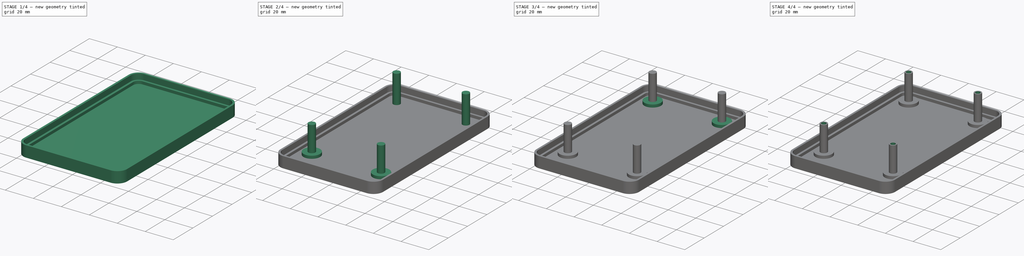
[diagram: build sequence overview — one tinted view per stage of 4, left to right]
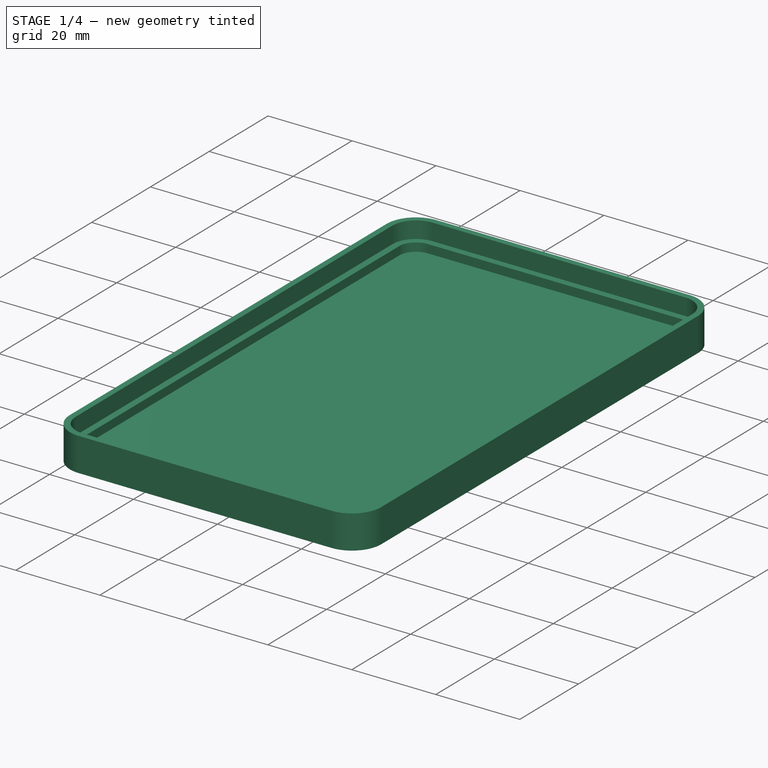
[diagram: stage 1 of 4 — iso view after this stage's code; geometry added in this stage tinted green]
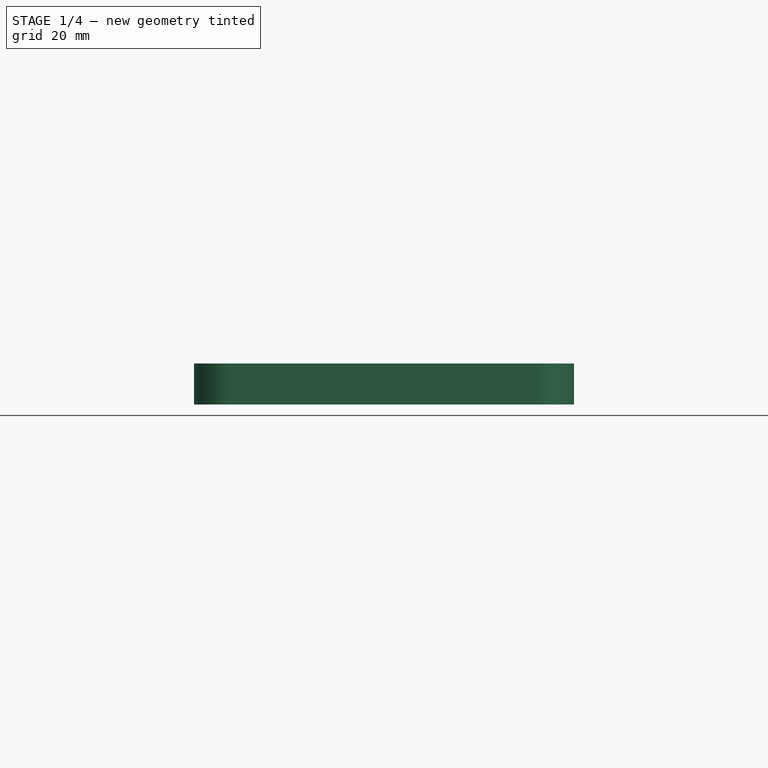
[diagram: stage 1 of 4 — front view after this stage's code; geometry added in this stage tinted green]
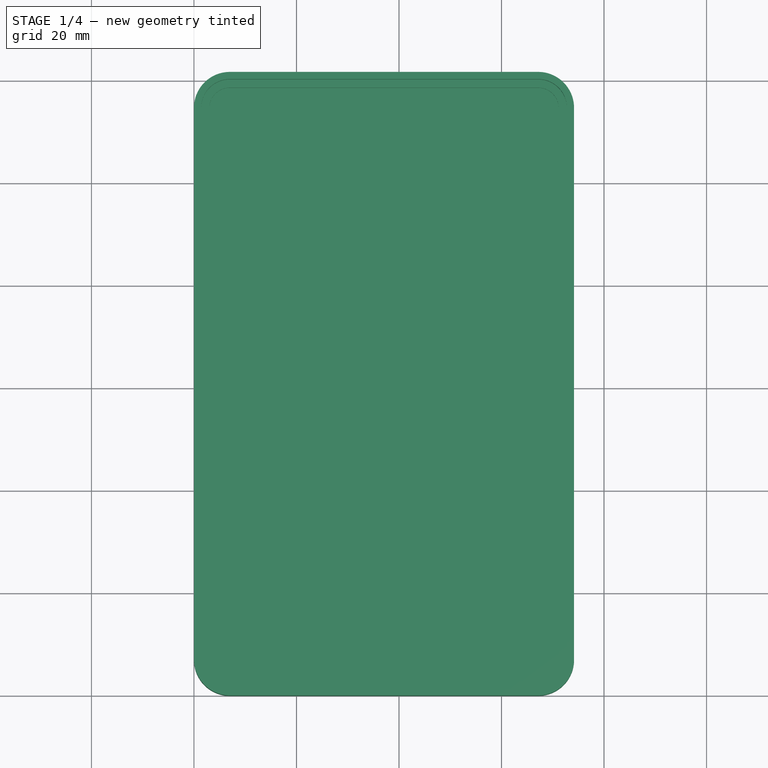
[diagram: stage 1 of 4 — top view after this stage's code; geometry added in this stage tinted green]
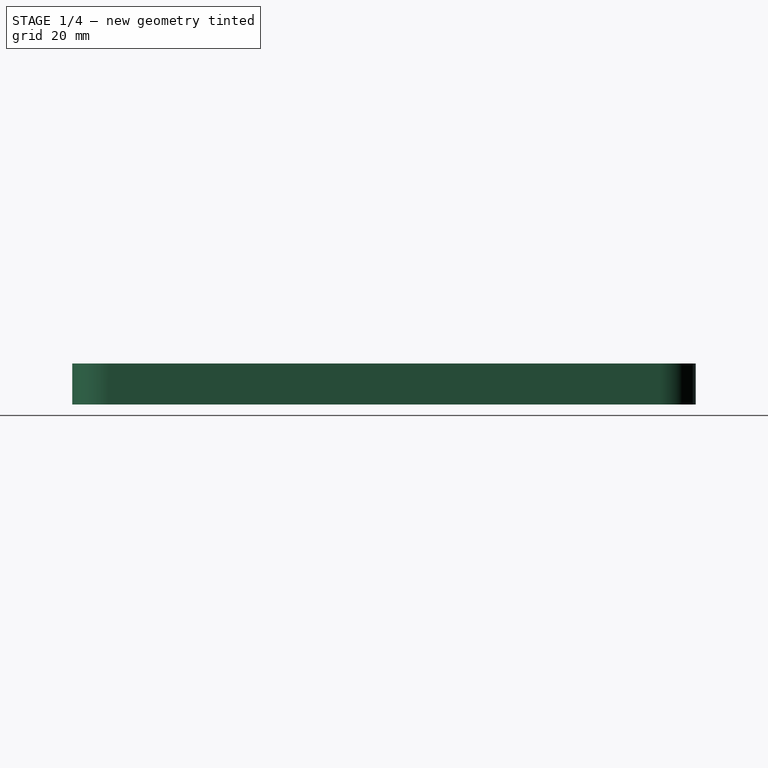
[diagram: stage 1 of 4 — right view after this stage's code; geometry added in this stage tinted green]
FCSTD DOCUMENT  (FreeCAD 0.20R29603 (Git))
Label: PPMInspectUnterschale
License: All rights reserved
LicenseURL: http://en.wikipedia.org/wiki/All_rights_reserved
objects: Part::Feature×13, Sketcher::SketchObject×5, PartDesign::Pad×4, PartDesign::AdditiveCylinder×4, PartDesign::SubtractiveCylinder×4, PartDesign::Pocket×1, PartDesign::Body×1
note: 45 computed .brp shape members not serialized (recipe doc carries the construction recipe); baked Part::Feature solids carry a one-line shape summary decoded from their .brp

FEATURE [Part::Feature] Shape004 .. Shape007  x4 (patterned run collapsed; names and placements below)
  shape: bbox 3.3 x 3.3 x 2e-07 mm, 0 faces, 0 solids (baked)
FEATURE [Part::Feature] Shape008 .. Shape011  x4 (patterned run collapsed; names and placements below)
  shape: bbox 5 x 5 x 2e-07 mm, 0 faces, 0 solids (baked)
FEATURE [Part::Feature] Shape030
  shape: bbox 3 x 2e-07 x 2e-07 mm, 0 faces, 0 solids (baked)
FEATURE [Part::Feature] Shape031
  shape: bbox 3 x 2e-07 x 2e-07 mm, 0 faces, 0 solids (baked)
FEATURE [Part::Feature] Wire001
  shape: bbox 68.15 x 115.7 x 2e-07 mm, 0 faces, 0 solids (baked)
FEATURE [Sketcher::SketchObject] Sketch001  label="Sketch001 Seitenteile dick"
  FullyConstrained = false
  sketch-geometry (16):
    g0: LineSegment StartX=7 StartY=3 StartZ=0 EndX=67.15 EndY=3 EndZ=0
    g1: ArcOfCircle CenterX=67.15 CenterY=7 CenterZ=0 NormalX=0 NormalY=0 NormalZ=1 AngleXU=0 Radius=4 StartAngle=4.71239 EndAngle=6.28319
    g2: LineSegment StartX=71.15 StartY=7 StartZ=0 EndX=71.15 EndY=114.65 EndZ=0
    g3: ArcOfCircle CenterX=67.15 CenterY=114.65 CenterZ=0 NormalX=0 NormalY=0 NormalZ=1 AngleXU=0 Radius=4 StartAngle=0 EndAngle=1.5708
    g4: LineSegment StartX=67.15 StartY=118.65 StartZ=0 EndX=7 EndY=118.65 EndZ=0
    g5: ArcOfCircle CenterX=7 CenterY=114.65 CenterZ=0 NormalX=0 NormalY=0 NormalZ=1 AngleXU=0 Radius=4 StartAngle=1.5708 EndAngle=3.14159
    g6: LineSegment StartX=3 StartY=114.65 StartZ=0 EndX=3 EndY=7 EndZ=0
    g7: ArcOfCircle CenterX=7 CenterY=7 CenterZ=0 NormalX=0 NormalY=0 NormalZ=1 AngleXU=0 Radius=4 StartAngle=3.14159 EndAngle=4.71239
    g8: LineSegment StartX=74.15 StartY=7 StartZ=0 EndX=74.15 EndY=114.65 EndZ=0
    g9: ArcOfCircle CenterX=67.15 CenterY=114.65 CenterZ=0 NormalX=0 NormalY=0 NormalZ=1 AngleXU=0 Radius=7 StartAngle=0 EndAngle=1.5708
    g10: LineSegment StartX=67.15 StartY=121.65 StartZ=0 EndX=7 EndY=121.65 EndZ=0
    g11: ArcOfCircle CenterX=7 CenterY=114.65 CenterZ=0 NormalX=0 NormalY=0 NormalZ=1 AngleXU=0 Radius=7 StartAngle=1.5708 EndAngle=3.14159
    g12: LineSegment StartX=0 StartY=114.65 StartZ=0 EndX=-1.33e-14 EndY=7 EndZ=0
    g13: ArcOfCircle CenterX=7 CenterY=7 CenterZ=0 NormalX=0 NormalY=0 NormalZ=1 AngleXU=0 Radius=7 StartAngle=3.14159 EndAngle=4.71239
    g14: LineSegment StartX=7 StartY=9e-16 StartZ=0 EndX=67.15 EndY=9e-16 EndZ=0
    g15: ArcOfCircle CenterX=67.15 CenterY=7 CenterZ=0 NormalX=0 NormalY=0 NormalZ=1 AngleXU=0 Radius=7 StartAngle=4.71239 EndAngle=6.28319
  constraints (18):
    c: Coincident(g0,g1)
    c: Coincident(g1,g2)
    c: Coincident(g2,g3)
    c: Coincident(g3,g4)
    c: Horizontal(g4)
    c: Coincident(g4,g5)
    c: Coincident(g5,g6)
    c: Coincident(g6,g7)
    c: Coincident(g7,g0)
    c: Coincident(g8,g9)
    c: Coincident(g9,g10)
    c: Horizontal(g10)
    c: Coincident(g10,g11)
    c: Coincident(g11,g12)
    c: Coincident(g12,g13)
    c: Coincident(g13,g14)
    c: Coincident(g14,g15)
    c: Coincident(g15,g8)
FEATURE [Part::Feature] Wire
  shape: bbox 74.15 x 121.7 x 2e-07 mm, 0 faces, 0 solids (baked)
FEATURE [Part::Feature] Wire003
  shape: bbox 71.35 x 118.9 x 2e-07 mm, 0 faces, 0 solids (baked)
FEATURE [Sketcher::SketchObject] Sketch  label="Sketch Seitenteile dünn"
  FullyConstrained = false
  sketch-geometry (16):
    g0: LineSegment StartX=74.15 StartY=7 StartZ=0 EndX=74.15 EndY=114.65 EndZ=0
    g1: ArcOfCircle CenterX=67.15 CenterY=114.65 CenterZ=0 NormalX=0 NormalY=0 NormalZ=1 AngleXU=0 Radius=7 StartAngle=0 EndAngle=1.5708
    g2: LineSegment StartX=67.15 StartY=121.65 StartZ=0 EndX=7 EndY=121.65 EndZ=0
    g3: ArcOfCircle CenterX=7 CenterY=114.65 CenterZ=0 NormalX=0 NormalY=0 NormalZ=1 AngleXU=0 Radius=7 StartAngle=1.5708 EndAngle=3.14159
    g4: LineSegment StartX=0 StartY=114.65 StartZ=0 EndX=-1.33e-14 EndY=7 EndZ=0
    g5: ArcOfCircle CenterX=7 CenterY=7 CenterZ=0 NormalX=0 NormalY=0 NormalZ=1 AngleXU=0 Radius=7 StartAngle=3.14159 EndAngle=4.71239
    g6: LineSegment StartX=7 StartY=9e-16 StartZ=0 EndX=67.15 EndY=9e-16 EndZ=0
    g7: ArcOfCircle CenterX=67.15 CenterY=7 CenterZ=0 NormalX=0 NormalY=0 NormalZ=1 AngleXU=0 Radius=7 StartAngle=4.71239 EndAngle=6.28319
    g8: LineSegment StartX=7 StartY=1.4 StartZ=0 EndX=67.15 EndY=1.4 EndZ=0
    g9: ArcOfCircle CenterX=67.15 CenterY=7 CenterZ=0 NormalX=0 NormalY=0 NormalZ=1 AngleXU=0 Radius=5.6 StartAngle=4.71239 EndAngle=6.28319
    g10: LineSegment StartX=72.75 StartY=7 StartZ=0 EndX=72.75 EndY=114.65 EndZ=0
    g11: ArcOfCircle CenterX=67.15 CenterY=114.65 CenterZ=0 NormalX=0 NormalY=0 NormalZ=1 AngleXU=0 Radius=5.6 StartAngle=0 EndAngle=1.5708
    g12: LineSegment StartX=67.15 StartY=120.25 StartZ=0 EndX=7 EndY=120.25 EndZ=0
    g13: ArcOfCircle CenterX=7 CenterY=114.65 CenterZ=0 NormalX=0 NormalY=0 NormalZ=1 AngleXU=0 Radius=5.6 StartAngle=1.5708 EndAngle=3.14159
    g14: LineSegment StartX=1.4 StartY=114.65 StartZ=0 EndX=1.4 EndY=7 EndZ=0
    g15: ArcOfCircle CenterX=7 CenterY=7 CenterZ=0 NormalX=0 NormalY=0 NormalZ=1 AngleXU=0 Radius=5.6 StartAngle=3.14159 EndAngle=4.71239
  constraints (18):
    c: Coincident(g0,g1)
    c: Coincident(g1,g2)
    c: Horizontal(g2)
    c: Coincident(g2,g3)
    c: Coincident(g3,g4)
    c: Coincident(g4,g5)
    c: Coincident(g5,g6)
    c: Horizontal(g6)
    c: Coincident(g6,g7)
    c: Coincident(g7,g0)
    c: Coincident(g8,g9)
    c: Coincident(g9,g10)
    c: Coincident(g10,g11)
    c: Coincident(g11,g12)
    c: Coincident(g12,g13)
    c: Coincident(g13,g14)
    c: Coincident(g14,g15)
    c: Coincident(g15,g8)
FEATURE [Sketcher::SketchObject] Sketch002  label="Sketch002 Pfosten dick"
  FullyConstrained = false
  sketch-geometry (4):
    g0: Circle CenterX=12.0751 CenterY=22.0751 CenterZ=0 NormalX=0 NormalY=0 NormalZ=-1 AngleXU=0 Radius=2.5
    g1: Circle CenterX=12.075 CenterY=109.575 CenterZ=0 NormalX=0 NormalY=0 NormalZ=-1 AngleXU=0 Radius=2.5
    g2: Circle CenterX=62.075 CenterY=109.575 CenterZ=0 NormalX=0 NormalY=0 NormalZ=-1 AngleXU=0 Radius=2.5
    g3: Circle CenterX=62.075 CenterY=22.0751 CenterZ=0 NormalX=0 NormalY=0 NormalZ=-1 AngleXU=0 Radius=2.5
FEATURE [Sketcher::SketchObject] Sketch003  label="Sketch003 Pfosten dünn"
  FullyConstrained = false
  sketch-geometry (4):
    g0: Circle CenterX=12.0751 CenterY=22.0751 CenterZ=0 NormalX=0 NormalY=0 NormalZ=-1 AngleXU=0 Radius=1.65
    g1: Circle CenterX=12.075 CenterY=109.575 CenterZ=0 NormalX=0 NormalY=0 NormalZ=-1 AngleXU=0 Radius=1.65
    g2: Circle CenterX=62.075 CenterY=109.575 CenterZ=0 NormalX=0 NormalY=0 NormalZ=-1 AngleXU=0 Radius=1.65
    g3: Circle CenterX=62.075 CenterY=22.0751 CenterZ=0 NormalX=0 NormalY=0 NormalZ=-1 AngleXU=0 Radius=1.65
FEATURE [Sketcher::SketchObject] Sketch004  label="Sketch004 Grundplatte"
  FullyConstrained = false
  MapMode = 5
  Support = -> [XY_Plane]
  sketch-geometry (8):
    g0: LineSegment StartX=74.15 StartY=7 StartZ=0 EndX=74.15 EndY=114.65 EndZ=0
    g1: ArcOfCircle CenterX=67.15 CenterY=114.65 CenterZ=0 NormalX=0 NormalY=0 NormalZ=1 AngleXU=0 Radius=7 StartAngle=0 EndAngle=1.5708
    g2: LineSegment StartX=67.15 StartY=121.65 StartZ=0 EndX=7 EndY=121.65 EndZ=0
    g3: ArcOfCircle CenterX=7 CenterY=114.65 CenterZ=0 NormalX=0 NormalY=0 NormalZ=1 AngleXU=0 Radius=7 StartAngle=1.5708 EndAngle=3.14159
    g4: LineSegment StartX=0 StartY=114.65 StartZ=0 EndX=-1.33e-14 EndY=7 EndZ=0
    g5: ArcOfCircle CenterX=7 CenterY=7 CenterZ=0 NormalX=0 NormalY=0 NormalZ=1 AngleXU=0 Radius=7 StartAngle=3.14159 EndAngle=4.71239
    g6: LineSegment StartX=7 StartY=9e-16 StartZ=0 EndX=67.15 EndY=9e-16 EndZ=0
    g7: ArcOfCircle CenterX=67.15 CenterY=7 CenterZ=0 NormalX=0 NormalY=0 NormalZ=1 AngleXU=0 Radius=7 StartAngle=4.71239 EndAngle=6.28319
  constraints (10):
    c: Coincident(g0,g1)
    c: Coincident(g1,g2)
    c: Horizontal(g2)
    c: Coincident(g2,g3)
    c: Coincident(g3,g4)
    c: Coincident(g4,g5)
    c: Coincident(g5,g6)
    c: Horizontal(g6)
    c: Coincident(g6,g7)
    c: Coincident(g7,g0)
FEATURE [PartDesign::Pad] Pad  label="Pad Grundplatte"
  Direction = (0,0,1)
  Length = 2
  Length2 = 10
  Profile = -> Sketch004
  ReferenceAxis = -> Sketch004 [N_Axis]
  Type = 0
FEATURE [PartDesign::Pad] Pad001  label="Pad001 Seitenteile dick"
  BaseFeature = -> Pad
  Direction = (0,0,1)
  Length = 4
  Length2 = 10
  Profile = -> Sketch001
  ReferenceAxis = -> Sketch001 [N_Axis]
  Type = 0
FEATURE [PartDesign::Pad] Pad002  label="Pad002 Seitenteile dünn"
  BaseFeature = -> Pad001
  Direction = (0,0,1)
  Length = 8
  Length2 = 10
  Profile = -> Sketch
  ReferenceAxis = -> Sketch [N_Axis]
  Type = 0
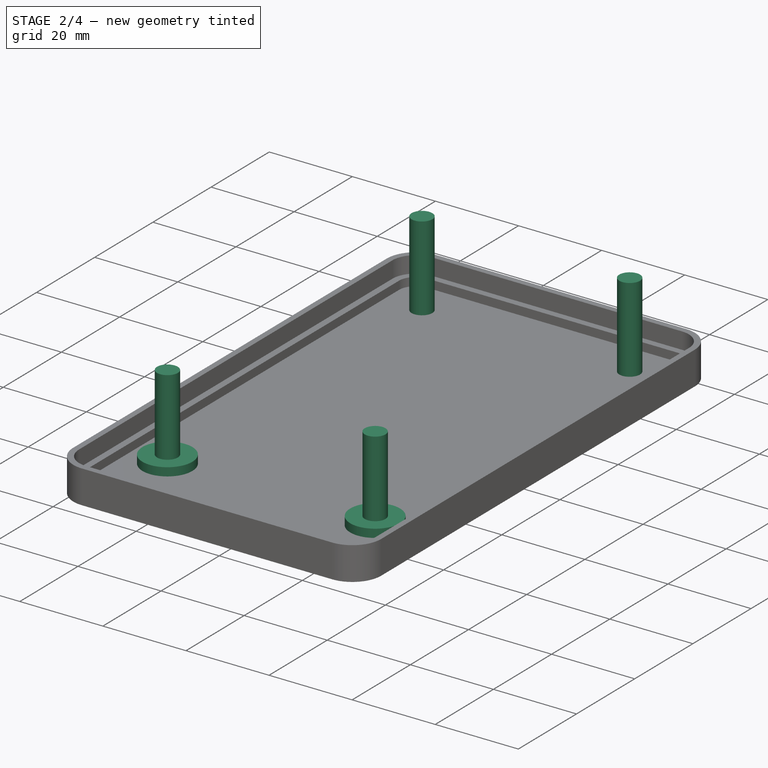
[diagram: stage 2 of 4 — iso view after this stage's code; geometry added in this stage tinted green]
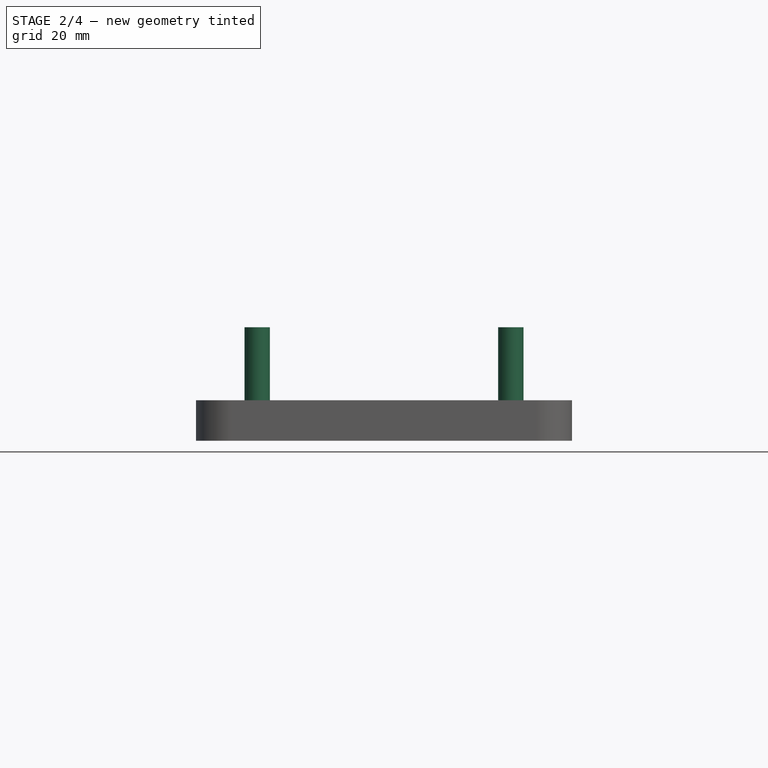
[diagram: stage 2 of 4 — front view after this stage's code; geometry added in this stage tinted green]
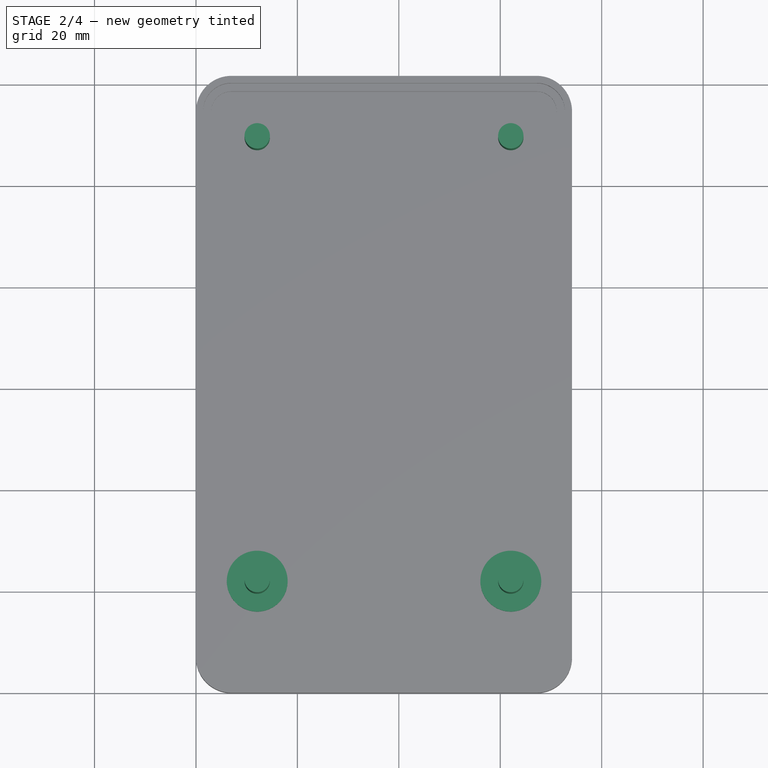
[diagram: stage 2 of 4 — top view after this stage's code; geometry added in this stage tinted green]
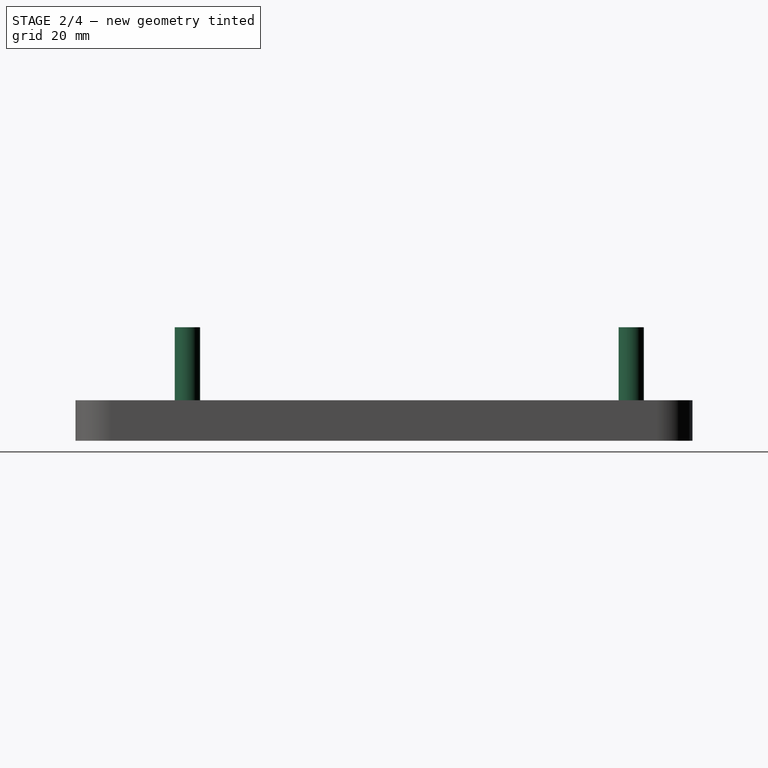
[diagram: stage 2 of 4 — right view after this stage's code; geometry added in this stage tinted green]
FEATURE [PartDesign::Pad] Pad003  label="Pad003 Pfosten dick"
  BaseFeature = -> Pad002
  Direction = (0,0,1)
  Length = 22.4
  Length2 = 10
  Profile = -> Sketch002
  ReferenceAxis = -> Sketch002 [N_Axis]
  Type = 0
FEATURE [PartDesign::AdditiveCylinder] Cylinder
  Angle = 360
  AttacherType = Attacher::AttachEngine3D
  BaseFeature = -> Pad003
  FirstAngle = 0
  Height = 4
  MapMode = 11
  Placement = pos=(12.0751,22.0751,0) rot=(0,0,-1;1.5708rad)
  Radius = 6
  SecondAngle = 0
  Support = -> [Shape011]
FEATURE [PartDesign::AdditiveCylinder] Cylinder001
  Angle = 360
  AttacherType = Attacher::AttachEngine3D
  BaseFeature = -> Cylinder
  FirstAngle = 0
  Height = 4
  MapMode = 11
  Placement = pos=(62.075,22.0751,0) rot=(0,0,-1;1.5708rad)
  Radius = 6
  SecondAngle = 0
  Support = -> [Shape010]
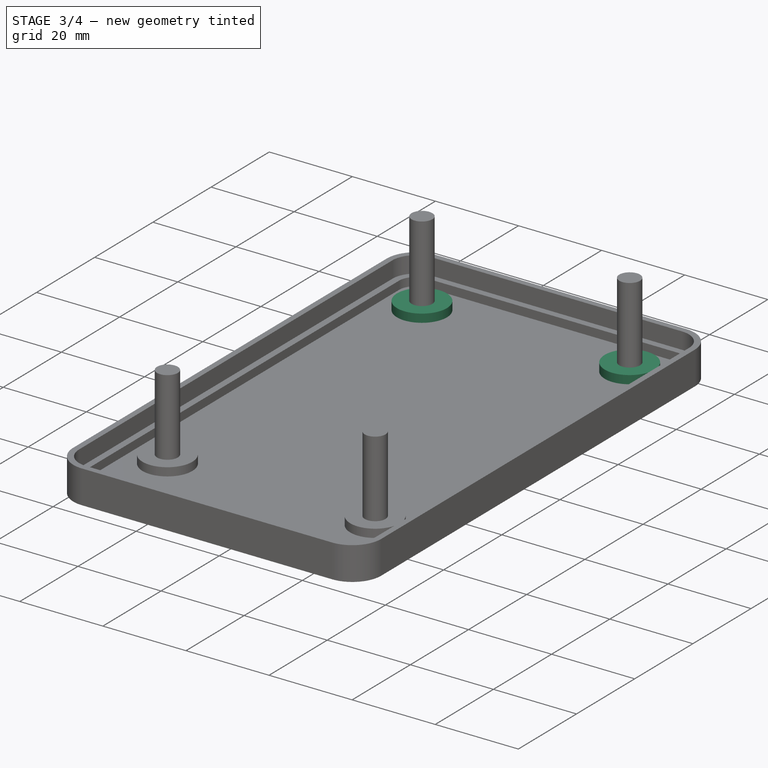
[diagram: stage 3 of 4 — iso view after this stage's code; geometry added in this stage tinted green]
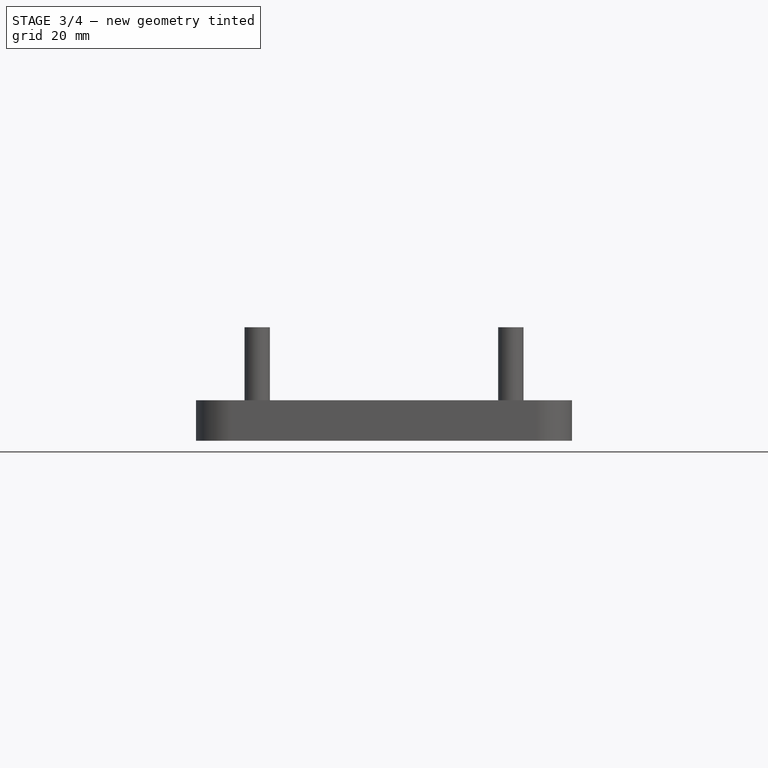
[diagram: stage 3 of 4 — front view after this stage's code; geometry added in this stage tinted green]
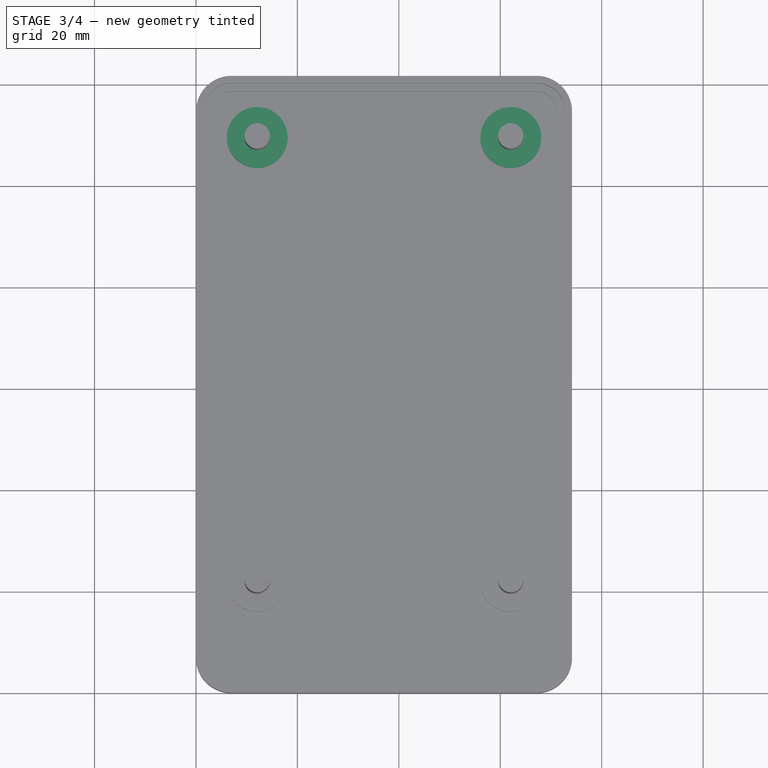
[diagram: stage 3 of 4 — top view after this stage's code; geometry added in this stage tinted green]
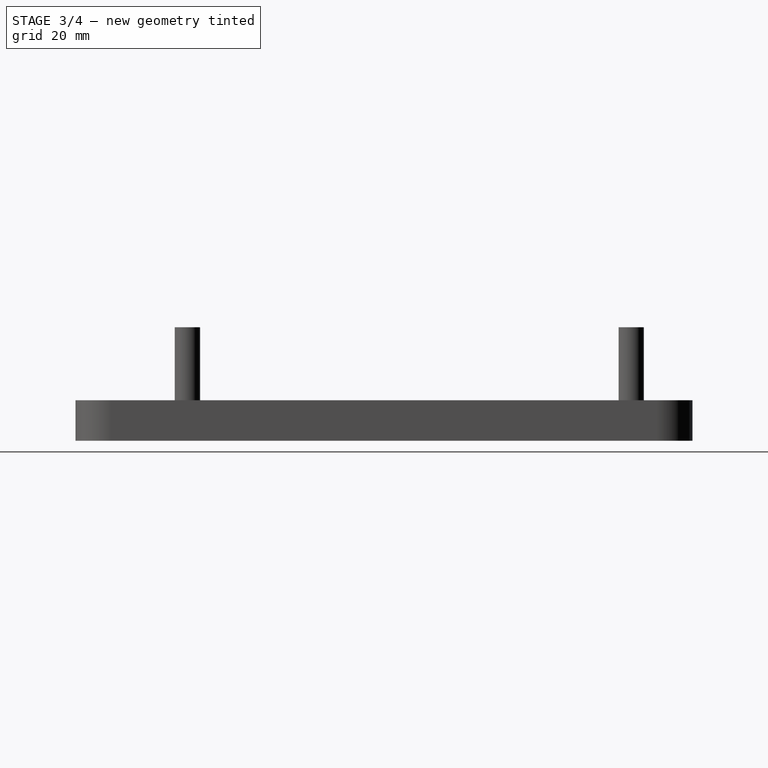
[diagram: stage 3 of 4 — right view after this stage's code; geometry added in this stage tinted green]
FEATURE [PartDesign::AdditiveCylinder] Cylinder002
  Angle = 360
  AttacherType = Attacher::AttachEngine3D
  BaseFeature = -> Cylinder001
  FirstAngle = 0
  Height = 4
  MapMode = 11
  Placement = pos=(62.075,109.575,0) rot=(0,0,-1;1.5708rad)
  Radius = 6
  SecondAngle = 0
  Support = -> [Shape008]
FEATURE [PartDesign::AdditiveCylinder] Cylinder003
  Angle = 360
  AttacherType = Attacher::AttachEngine3D
  BaseFeature = -> Cylinder002
  FirstAngle = 0
  Height = 4
  MapMode = 11
  Placement = pos=(12.075,109.575,0) rot=(0,0,-1;1.5708rad)
  Radius = 6
  SecondAngle = 0
  Support = -> [Cylinder002]
FEATURE [PartDesign::SubtractiveCylinder] Cylinder004
  Angle = 360
  AttacherType = Attacher::AttachEngine3D
  BaseFeature = -> Cylinder003
  FirstAngle = 0
  Height = 2
  MapMode = 11
  Placement = pos=(12.0751,22.0751,0) rot=(0,0,-1;1.5708rad)
  Radius = 3
  SecondAngle = 0
  Support = -> [Shape011]
FEATURE [PartDesign::SubtractiveCylinder] Cylinder005
  Angle = 360
  AttacherType = Attacher::AttachEngine3D
  BaseFeature = -> Cylinder004
  FirstAngle = 0
  Height = 2
  MapMode = 11
  Placement = pos=(62.075,22.0751,0) rot=(0,0,-1;1.5708rad)
  Radius = 3
  SecondAngle = 0
  Support = -> [Shape010]
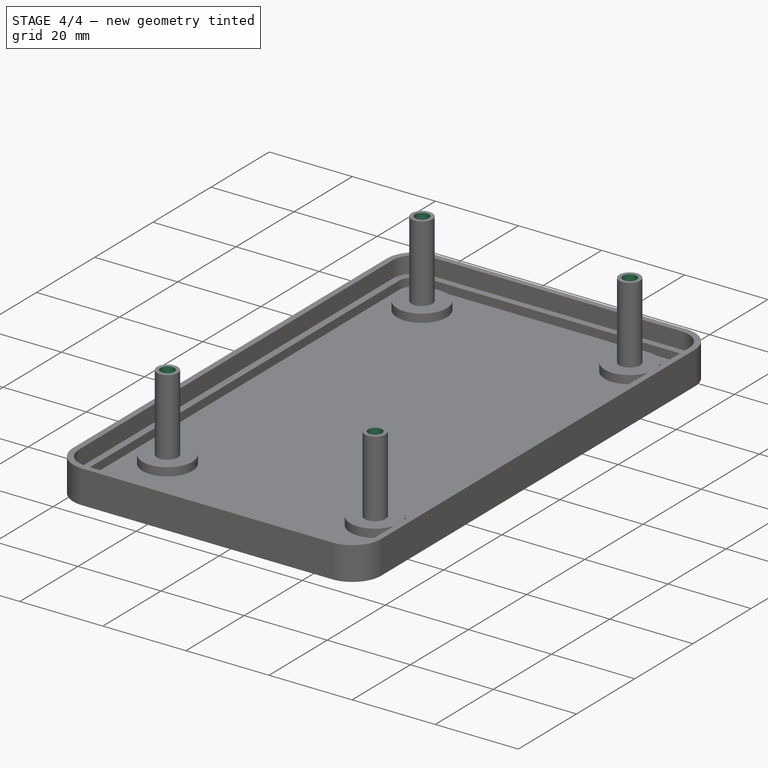
[diagram: stage 4 of 4 — iso view after this stage's code; geometry added in this stage tinted green]
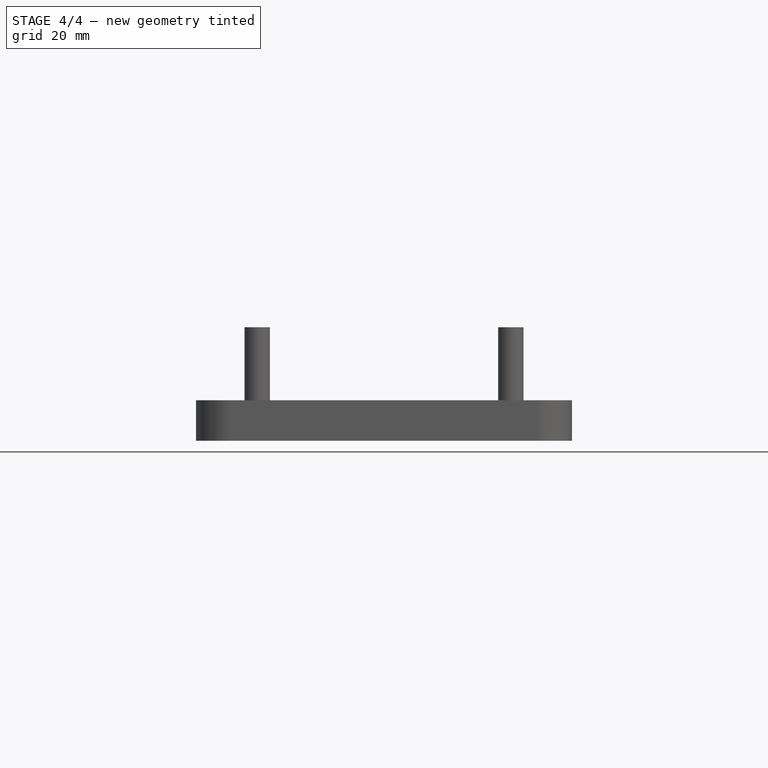
[diagram: stage 4 of 4 — front view after this stage's code; geometry added in this stage tinted green]
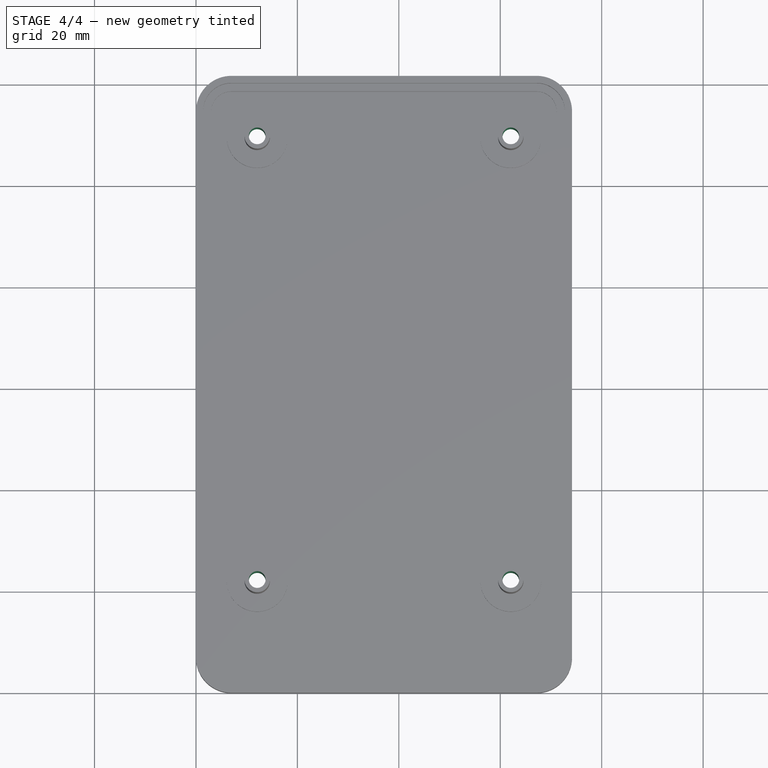
[diagram: stage 4 of 4 — top view after this stage's code; geometry added in this stage tinted green]
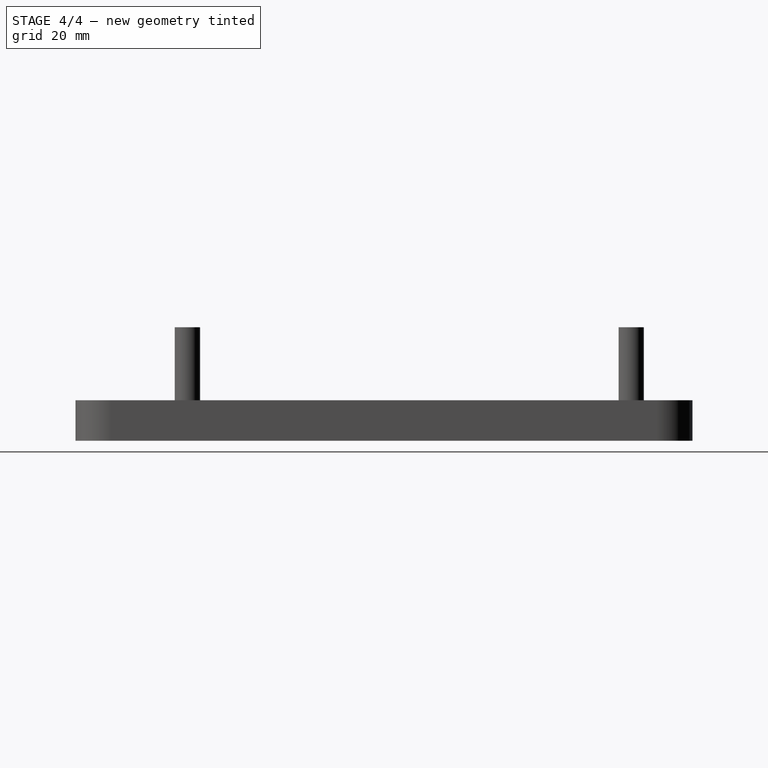
[diagram: stage 4 of 4 — right view after this stage's code; geometry added in this stage tinted green]
FEATURE [PartDesign::SubtractiveCylinder] Cylinder006
  Angle = 360
  AttacherType = Attacher::AttachEngine3D
  BaseFeature = -> Cylinder005
  FirstAngle = 0
  Height = 2
  MapMode = 11
  Placement = pos=(12.075,109.575,0) rot=(0,0,-1;1.5708rad)
  Radius = 3
  SecondAngle = 0
  Support = -> [Shape009]
FEATURE [PartDesign::SubtractiveCylinder] Cylinder007
  Angle = 360
  AttacherType = Attacher::AttachEngine3D
  BaseFeature = -> Cylinder006
  FirstAngle = 0
  Height = 2
  MapMode = 11
  Placement = pos=(62.075,109.575,0) rot=(0,0,-1;1.5708rad)
  Radius = 3
  SecondAngle = 0
  Support = -> [Cylinder006]
FEATURE [PartDesign::Pocket] Pocket
  BaseFeature = -> Cylinder007
  Direction = (0,0,-1)
  Length = 22.4
  Length2 = 5
  Placement = pos=(62.075,109.575,0) rot=(0,0,-1;1.5708rad)
  Profile = -> Sketch003
  ReferenceAxis = -> Sketch003 [N_Axis]
  Reversed = true
  Type = 0
FEATURE [PartDesign::Body] Body
  Group = -> [Sketch004,Pad,Sketch001,Pad001,Sketch,Pad002,Sketch002,Pad003,Sketch003,Cylinder,Cylinder001,Cylinder002,Cylinder003,Cylinder004,Cylinder005,Cylinder006,Cylinder007,Pocket]
  Origin = -> Origin
  Tip = -> Pocket
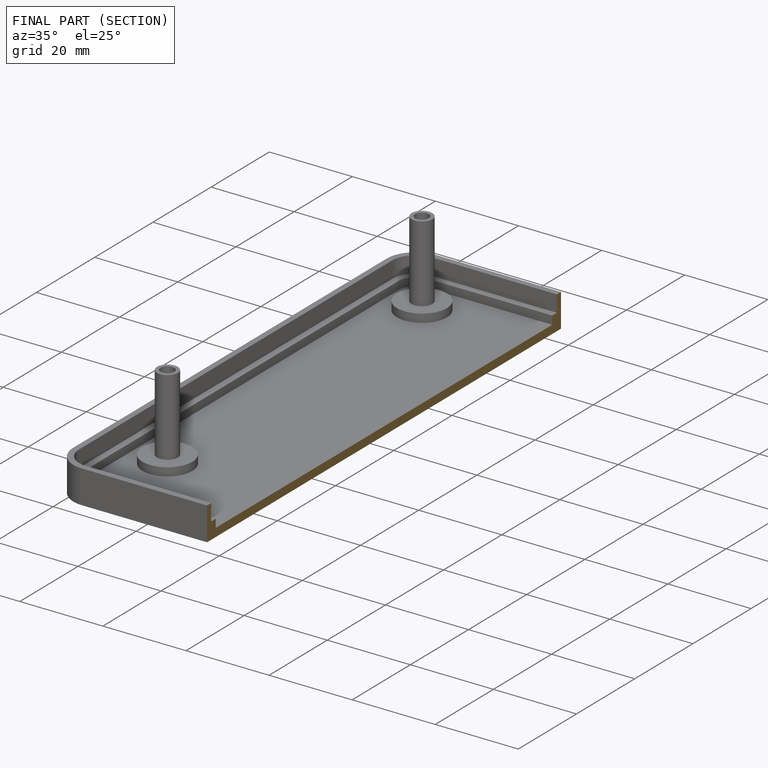
[diagram: finished part — half-section view (interior)]
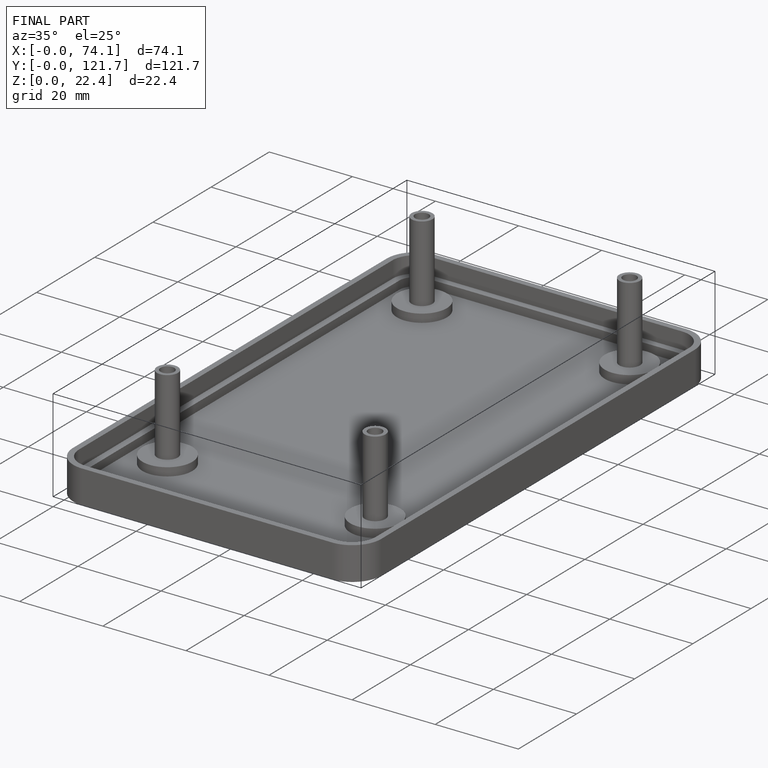
[diagram: finished part — iso view with bounding-box wireframe]
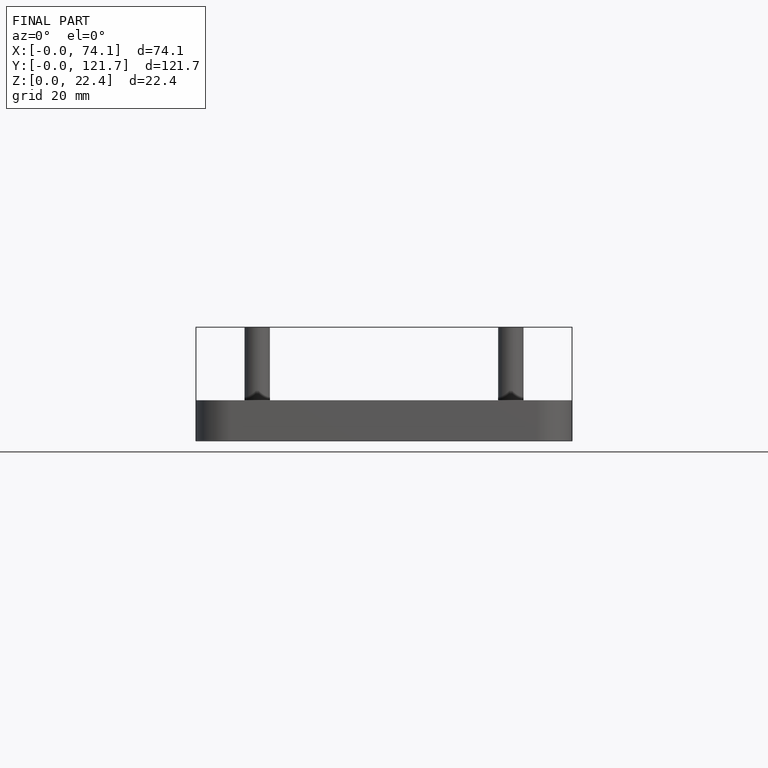
[diagram: finished part — front view with bounding-box wireframe]
